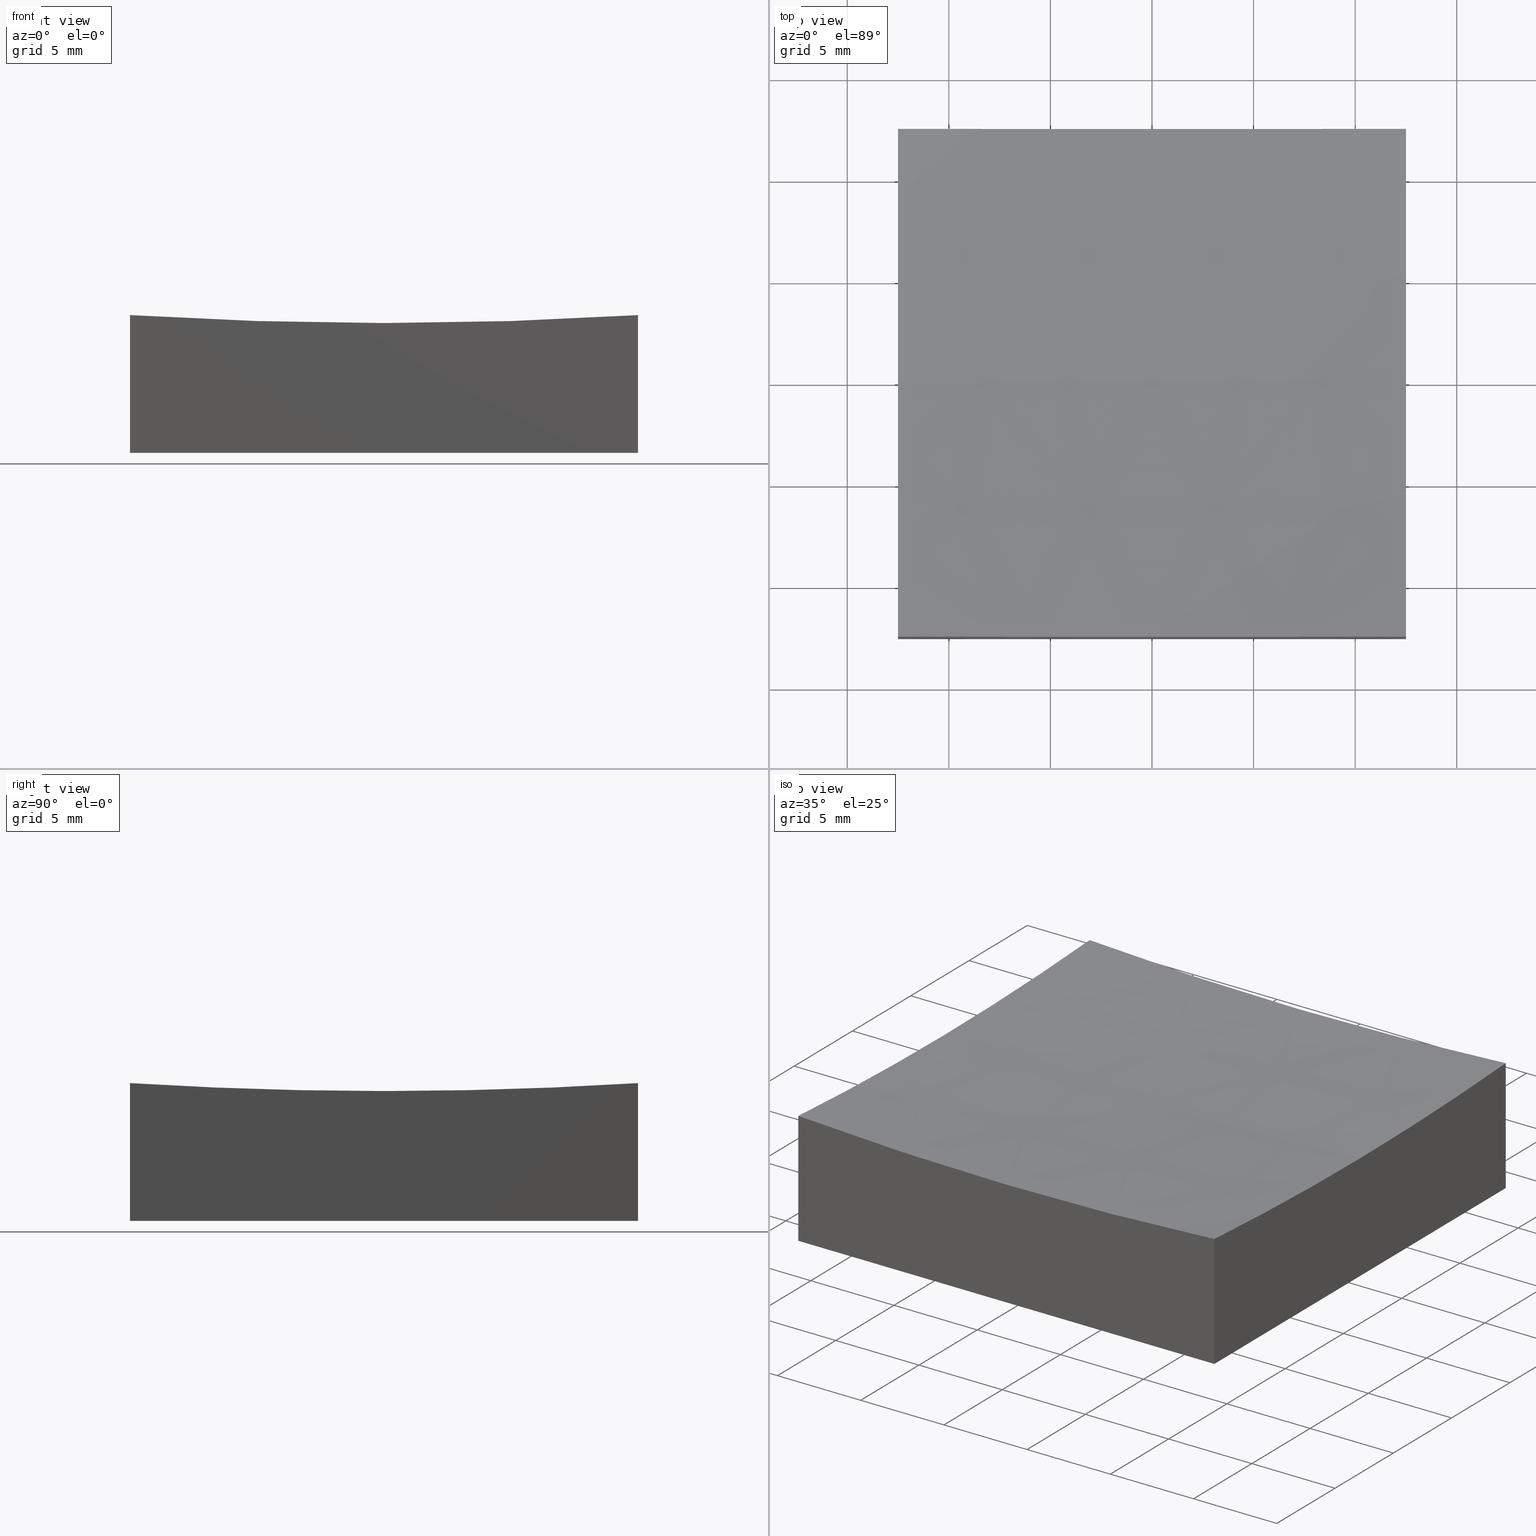
[diagram: canonical four-view strip — front | top / right | iso, engineering-drawing reading convention]
A machine part, canonical four-view strip (front | top / right | iso — engineering-drawing reading convention). The complete STEP part file that produces these views, byte-faithful:
ISO-10303-21;
HEADER;
FILE_DESCRIPTION (( 'STEP AP214' ),
    '1' );
FILE_NAME ('270038.STEP',
    '2020-06-05T06:24:30',
    ( '' ),
    ( '' ),
    'SwSTEP 2.0',
    'SolidWorks 2019',
    '' );
FILE_SCHEMA (( 'AUTOMOTIVE_DESIGN' ));
ENDSEC;

DATA;
#1 = ORIENTED_EDGE ( 'NONE', *, *, #158, .F. ) ;
#2 = DIRECTION ( 'NONE',  ( -0.0000000000000000000, -0.0000000000000000000, -1.000000000000000000 ) ) ;
#3 = ORIENTED_EDGE ( 'NONE', *, *, #20, .T. ) ;
#4 = MECHANICAL_DESIGN_GEOMETRIC_PRESENTATION_REPRESENTATION (  '', ( #225 ), #229 ) ;
#5 = DIRECTION ( 'NONE',  ( 0.0000000000000000000, 0.0000000000000000000, -1.000000000000000000 ) ) ;
#6 = ORIENTED_EDGE ( 'NONE', *, *, #20, .F. ) ;
#7 = LINE ( 'NONE', #161, #188 ) ;
#8 = DIRECTION ( 'NONE',  ( -0.0000000000000000000, -0.0000000000000000000, -1.000000000000000000 ) ) ;
#9 =( NAMED_UNIT ( * ) SI_UNIT ( $, .STERADIAN. ) SOLID_ANGLE_UNIT ( ) );
#10 = VECTOR ( 'NONE', #8, 1000.000000000000000 ) ;
#11 = FILL_AREA_STYLE ('',( #186 ) ) ;
#12 = EDGE_CURVE ( 'NONE', #119, #31, #106, .T. ) ;
#13 = AXIS2_PLACEMENT_3D ( 'NONE', #14, #68, #48 ) ;
#14 = CARTESIAN_POINT ( 'NONE',  ( -12.50000000000000000, 12.50000000000000000, 20.00000000000000000 ) ) ;
#15 = APPLICATION_CONTEXT ( 'automotive_design' ) ;
#16 = ORIENTED_EDGE ( 'NONE', *, *, #12, .T. ) ;
#17 = VECTOR ( 'NONE', #24, 1000.000000000000000 ) ;
#18 = ORIENTED_EDGE ( 'NONE', *, *, #118, .F. ) ;
#19 = ORIENTED_EDGE ( 'NONE', *, *, #187, .T. ) ;
#20 = EDGE_CURVE ( 'NONE', #95, #228, #72, .T. ) ;
#21 = FILL_AREA_STYLE ('',( #60 ) ) ;
#22 = ORIENTED_EDGE ( 'NONE', *, *, #89, .F. ) ;
#23 = CARTESIAN_POINT ( 'NONE',  ( 12.50000000000000355, -12.50000000000000000, 20.00000000000000000 ) ) ;
#24 = DIRECTION ( 'NONE',  ( -0.0000000000000000000, -0.0000000000000000000, -1.000000000000000000 ) ) ;
#25 = PRODUCT_CONTEXT ( 'NONE', #52, 'mechanical' ) ;
#26 = CARTESIAN_POINT ( 'NONE',  ( 12.50000000000000355, -12.50000000000000000, 6.782781868634652156 ) ) ;
#27 = CIRCLE ( 'NONE', #36, 199.6089927833914430 ) ;
#28 = CARTESIAN_POINT ( 'NONE',  ( -12.50000000000000000, 12.50000000000000000, 6.782781868634652156 ) ) ;
#29 = AXIS2_PLACEMENT_3D ( 'NONE', #233, #241, #99 ) ;
#30 = DIRECTION ( 'NONE',  ( 1.000000000000000000, 1.387778780781445676E-16, -0.0000000000000000000 ) ) ;
#31 = VERTEX_POINT ( 'NONE', #100 ) ;
#32 = CARTESIAN_POINT ( 'NONE',  ( -12.49999999999999822, 1.530808498934192310E-15, 6.391007216608610264 ) ) ;
#33 = ORIENTED_EDGE ( 'NONE', *, *, #98, .T. ) ;
#34 = DIRECTION ( 'NONE',  ( 0.0000000000000000000, 1.000000000000000000, 0.0000000000000000000 ) ) ;
#35 = DIRECTION ( 'NONE',  ( -1.390497253084598109E-16, 1.000000000000000000, 0.0000000000000000000 ) ) ;
#36 = AXIS2_PLACEMENT_3D ( 'NONE', #171, #73, #203 ) ;
#37 = ORIENTED_EDGE ( 'NONE', *, *, #12, .F. ) ;
#38 = EDGE_CURVE ( 'NONE', #172, #84, #178, .T. ) ;
#39 = CARTESIAN_POINT ( 'NONE',  ( -12.49999999999999822, -1.734723475976810644E-15, 206.0000000000000284 ) ) ;
#40 = PLANE ( 'NONE',  #58 ) ;
#41 = EDGE_CURVE ( 'NONE', #119, #78, #136, .T. ) ;
#42 = CARTESIAN_POINT ( 'NONE',  ( 12.50000000000000000, 12.50000000000000000, 6.782781868634652156 ) ) ;
#43 = ORIENTED_EDGE ( 'NONE', *, *, #41, .T. ) ;
#44 = SURFACE_STYLE_FILL_AREA ( #21 ) ;
#45 = ORIENTED_EDGE ( 'NONE', *, *, #206, .T. ) ;
#46 = LINE ( 'NONE', #23, #93 ) ;
#47 = FACE_OUTER_BOUND ( 'NONE', #207, .T. ) ;
#48 = DIRECTION ( 'NONE',  ( -1.387778780781445676E-16, 1.000000000000000000, 0.0000000000000000000 ) ) ;
#49 = CARTESIAN_POINT ( 'NONE',  ( 12.50000000000000355, -12.50000000000000000, 0.0000000000000000000 ) ) ;
#50 = PLANE ( 'NONE',  #204 ) ;
#51 = ADVANCED_FACE ( 'NONE', ( #47 ), #40, .T. ) ;
#52 = APPLICATION_CONTEXT ( 'automotive_design' ) ;
#53 = ORIENTED_EDGE ( 'NONE', *, *, #246, .T. ) ;
#54 = AXIS2_PLACEMENT_3D ( 'NONE', #243, #170, #35 ) ;
#55 = CARTESIAN_POINT ( 'NONE',  ( 0.0000000000000000000, 0.0000000000000000000, 0.0000000000000000000 ) ) ;
#56 = DIRECTION ( 'NONE',  ( 0.0000000000000000000, 0.0000000000000000000, 1.000000000000000000 ) ) ;
#57 = DIRECTION ( 'NONE',  ( 1.224646799147353207E-16, 1.000000000000000000, -1.241382061109245171E-32 ) ) ;
#58 = AXIS2_PLACEMENT_3D ( 'NONE', #129, #121, #196 ) ;
#59 = ORIENTED_EDGE ( 'NONE', *, *, #66, .T. ) ;
#60 = FILL_AREA_STYLE_COLOUR ( '', #87 ) ;
#61 = ORIENTED_EDGE ( 'NONE', *, *, #246, .F. ) ;
#62 = CARTESIAN_POINT ( 'NONE',  ( 2.522772406243548785E-14, 0.0000000000000000000, 206.0000000000000284 ) ) ;
#63 = ORIENTED_EDGE ( 'NONE', *, *, #132, .F. ) ;
#64 = DIRECTION ( 'NONE',  ( 0.0000000000000000000, -1.000000000000000000, -0.0000000000000000000 ) ) ;
#65 = CARTESIAN_POINT ( 'NONE',  ( 12.50000000000000178, 1.734723475976803742E-15, 206.0000000000000284 ) ) ;
#66 = EDGE_CURVE ( 'NONE', #84, #242, #238, .T. ) ;
#67 = PLANE ( 'NONE',  #126 ) ;
#68 = DIRECTION ( 'NONE',  ( 1.000000000000000000, 1.387778780781445676E-16, -0.0000000000000000000 ) ) ;
#69 = COLOUR_RGB ( '',1.000000000000000000, 1.000000000000000000, 1.000000000000000000 ) ;
#70 = FACE_OUTER_BOUND ( 'NONE', #202, .T. ) ;
#71 = AXIS2_PLACEMENT_3D ( 'NONE', #128, #197, #160 ) ;
#72 = CIRCLE ( 'NONE', #219, 199.6089927833914146 ) ;
#73 = DIRECTION ( 'NONE',  ( 0.0000000000000000000, 1.000000000000000000, 0.0000000000000000000 ) ) ;
#74 = UNCERTAINTY_MEASURE_WITH_UNIT (LENGTH_MEASURE( 1.000000000000000082E-05 ), #92, 'distance_accuracy_value', 'NONE');
#75 =( GEOMETRIC_REPRESENTATION_CONTEXT ( 3 ) GLOBAL_UNCERTAINTY_ASSIGNED_CONTEXT ( ( #190 ) ) GLOBAL_UNIT_ASSIGNED_CONTEXT ( ( #159, #231, #76 ) ) REPRESENTATION_CONTEXT ( 'NONE', 'WORKASPACE' ) );
#76 =( NAMED_UNIT ( * ) SI_UNIT ( $, .STERADIAN. ) SOLID_ANGLE_UNIT ( ) );
#77 = LINE ( 'NONE', #182, #162 ) ;
#78 = VERTEX_POINT ( 'NONE', #28 ) ;
#79 = PRODUCT_DEFINITION_FORMATION_WITH_SPECIFIED_SOURCE ( '�κ�', '', #117, .NOT_KNOWN. ) ;
#80 = SPHERICAL_SURFACE ( 'NONE', #71, 200.0000000000000000 ) ;
#81 = CIRCLE ( 'NONE', #223, 199.6089927833914146 ) ;
#82 = ORIENTED_EDGE ( 'NONE', *, *, #194, .F. ) ;
#83 = CARTESIAN_POINT ( 'NONE',  ( -12.49999999999999645, -12.50000000000000000, 6.782781868634652156 ) ) ;
#84 = VERTEX_POINT ( 'NONE', #104 ) ;
#85 = DIRECTION ( 'NONE',  ( -0.0000000000000000000, -0.0000000000000000000, -1.000000000000000000 ) ) ;
#86 = EDGE_LOOP ( 'NONE', ( #108, #33, #115, #167 ) ) ;
#87 = COLOUR_RGB ( '',1.000000000000000000, 1.000000000000000000, 1.000000000000000000 ) ;
#88 = SURFACE_STYLE_FILL_AREA ( #11 ) ;
#89 = EDGE_CURVE ( 'NONE', #193, #31, #77, .T. ) ;
#90 =( NAMED_UNIT ( * ) PLANE_ANGLE_UNIT ( ) SI_UNIT ( $, .RADIAN. ) );
#91 = ADVANCED_FACE ( 'NONE', ( #166 ), #80, .F. ) ;
#92 =( LENGTH_UNIT ( ) NAMED_UNIT ( * ) SI_UNIT ( .MILLI., .METRE. ) );
#93 = VECTOR ( 'NONE', #2, 1000.000000000000000 ) ;
#94 = VERTEX_POINT ( 'NONE', #164 ) ;
#95 = VERTEX_POINT ( 'NONE', #26 ) ;
#96 = DIRECTION ( 'NONE',  ( -1.390497253084598109E-16, 1.000000000000000000, 0.0000000000000000000 ) ) ;
#97 = ORIENTED_EDGE ( 'NONE', *, *, #158, .T. ) ;
#98 = EDGE_CURVE ( 'NONE', #31, #242, #214, .T. ) ;
#99 = DIRECTION ( 'NONE',  ( -1.000000000000000000, 0.0000000000000000000, -0.0000000000000000000 ) ) ;
#100 = CARTESIAN_POINT ( 'NONE',  ( 12.50000000000000000, 12.50000000000000000, 0.0000000000000000000 ) ) ;
#101 = APPLICATION_PROTOCOL_DEFINITION ( 'draft international standard', 'automotive_design', 1998, #15 ) ;
#102 = DIRECTION ( 'NONE',  ( 1.387778780781445676E-16, -1.000000000000000000, 0.0000000000000000000 ) ) ;
#103 = VECTOR ( 'NONE', #102, 1000.000000000000000 ) ;
#104 = CARTESIAN_POINT ( 'NONE',  ( -12.49999999999999645, -12.50000000000000000, 0.0000000000000000000 ) ) ;
#105 = DIRECTION ( 'NONE',  ( -1.000000000000000000, 1.224646799147353207E-16, 0.0000000000000000000 ) ) ;
#106 = LINE ( 'NONE', #183, #10 ) ;
#107 = CARTESIAN_POINT ( 'NONE',  ( 2.522772406243548785E-14, 0.0000000000000000000, 206.0000000000000284 ) ) ;
#108 = ORIENTED_EDGE ( 'NONE', *, *, #89, .T. ) ;
#109 = FACE_OUTER_BOUND ( 'NONE', #140, .T. ) ;
#110 = CIRCLE ( 'NONE', #249, 199.6089927833914146 ) ;
#111 = ADVANCED_FACE ( 'NONE', ( #138 ), #120, .T. ) ;
#112 = CARTESIAN_POINT ( 'NONE',  ( -12.50000000000000000, 12.50000000000000000, 20.00000000000000000 ) ) ;
#113 = PRESENTATION_LAYER_ASSIGNMENT (  '', '', ( #225 ) ) ;
#114 = ORIENTED_EDGE ( 'NONE', *, *, #168, .T. ) ;
#115 = ORIENTED_EDGE ( 'NONE', *, *, #66, .F. ) ;
#116 = PRODUCT_DEFINITION_CONTEXT ( 'detailed design', #15, 'design' ) ;
#117 = PRODUCT ( '270038', '270038', '', ( #25 ) ) ;
#118 = EDGE_CURVE ( 'NONE', #78, #193, #7, .T. ) ;
#119 = VERTEX_POINT ( 'NONE', #42 ) ;
#120 = PLANE ( 'NONE',  #29 ) ;
#121 = DIRECTION ( 'NONE',  ( 1.000000000000000000, 1.387778780781445676E-16, -0.0000000000000000000 ) ) ;
#122 = PRESENTATION_STYLE_ASSIGNMENT (( #137 ) ) ;
#123 = CARTESIAN_POINT ( 'NONE',  ( 2.522772406243548785E-14, 0.0000000000000000000, 206.0000000000000284 ) ) ;
#124 = CARTESIAN_POINT ( 'NONE',  ( 2.522772406243548785E-14, 12.50000000000000000, 206.0000000000000284 ) ) ;
#125 = SURFACE_SIDE_STYLE ('',( #44 ) ) ;
#126 = AXIS2_PLACEMENT_3D ( 'NONE', #245, #34, #226 ) ;
#127 = EDGE_LOOP ( 'NONE', ( #63, #114, #45, #43, #82 ) ) ;
#128 = CARTESIAN_POINT ( 'NONE',  ( 2.522772406243548785E-14, 0.0000000000000000000, 206.0000000000000284 ) ) ;
#129 = CARTESIAN_POINT ( 'NONE',  ( 12.50000000000000000, 12.50000000000000000, 20.00000000000000000 ) ) ;
#130 =( NAMED_UNIT ( * ) SI_UNIT ( $, .STERADIAN. ) SOLID_ANGLE_UNIT ( ) );
#131 = DIRECTION ( 'NONE',  ( 0.0000000000000000000, 1.000000000000000000, 0.0000000000000000000 ) ) ;
#132 = EDGE_CURVE ( 'NONE', #94, #146, #180, .T. ) ;
#133 = CARTESIAN_POINT ( 'NONE',  ( 12.50000000000000000, 0.0000000000000000000, 6.391007216608610264 ) ) ;
#134 =( NAMED_UNIT ( * ) PLANE_ANGLE_UNIT ( ) SI_UNIT ( $, .RADIAN. ) );
#135 = EDGE_LOOP ( 'NONE', ( #1, #53, #154, #59 ) ) ;
#136 = CIRCLE ( 'NONE', #251, 199.6089927833914430 ) ;
#137 = SURFACE_STYLE_USAGE ( .BOTH. , #218 ) ;
#138 = FACE_OUTER_BOUND ( 'NONE', #86, .T. ) ;
#139 = VECTOR ( 'NONE', #211, 1000.000000000000000 ) ;
#140 = EDGE_LOOP ( 'NONE', ( #189, #16, #22, #18 ) ) ;
#141 = DIRECTION ( 'NONE',  ( 1.000000000000000000, 0.0000000000000000000, -1.387778780781445676E-16 ) ) ;
#142 = ORIENTED_EDGE ( 'NONE', *, *, #149, .F. ) ;
#143 = CARTESIAN_POINT ( 'NONE',  ( -12.49999999999999822, -1.734723475976810644E-15, 206.0000000000000284 ) ) ;
#144 = CARTESIAN_POINT ( 'NONE',  ( -12.49999999999999645, -12.50000000000000000, 20.00000000000000000 ) ) ;
#145 = LINE ( 'NONE', #216, #139 ) ;
#146 = VERTEX_POINT ( 'NONE', #32 ) ;
#147 = PRESENTATION_STYLE_ASSIGNMENT (( #252 ) ) ;
#148 = ADVANCED_FACE ( 'NONE', ( #239 ), #174, .F. ) ;
#149 = EDGE_CURVE ( 'NONE', #172, #146, #110, .T. ) ;
#150 = AXIS2_PLACEMENT_3D ( 'NONE', #62, #237, #141 ) ;
#151 = PRODUCT_DEFINITION ( 'δ֪', '', #79, #116 ) ;
#152 =( LENGTH_UNIT ( ) NAMED_UNIT ( * ) SI_UNIT ( .MILLI., .METRE. ) );
#153 = ORIENTED_EDGE ( 'NONE', *, *, #118, .T. ) ;
#154 = ORIENTED_EDGE ( 'NONE', *, *, #38, .T. ) ;
#155 = STYLED_ITEM ( 'NONE', ( #122 ), #247 ) ;
#156 = CIRCLE ( 'NONE', #54, 199.6089927833914146 ) ;
#157 = AXIS2_PLACEMENT_3D ( 'NONE', #123, #57, #105 ) ;
#158 = EDGE_CURVE ( 'NONE', #95, #242, #46, .T. ) ;
#159 =( LENGTH_UNIT ( ) NAMED_UNIT ( * ) SI_UNIT ( .MILLI., .METRE. ) );
#160 = DIRECTION ( 'NONE',  ( 1.000000000000000000, 0.0000000000000000000, -1.387778780781445676E-16 ) ) ;
#161 = CARTESIAN_POINT ( 'NONE',  ( -12.50000000000000000, 12.50000000000000000, 20.00000000000000000 ) ) ;
#162 = VECTOR ( 'NONE', #195, 1000.000000000000000 ) ;
#163 = DIRECTION ( 'NONE',  ( 0.0000000000000000000, 1.000000000000000000, 0.0000000000000000000 ) ) ;
#164 = CARTESIAN_POINT ( 'NONE',  ( 1.720088448517093624E-14, 0.0000000000000000000, 6.000000000000005329 ) ) ;
#165 = ORIENTED_EDGE ( 'NONE', *, *, #206, .F. ) ;
#166 = FACE_OUTER_BOUND ( 'NONE', #217, .T. ) ;
#167 = ORIENTED_EDGE ( 'NONE', *, *, #187, .F. ) ;
#168 = EDGE_CURVE ( 'NONE', #94, #228, #230, .T. ) ;
#169 = FACE_OUTER_BOUND ( 'NONE', #135, .T. ) ;
#170 = DIRECTION ( 'NONE',  ( 1.000000000000000000, 1.387778780781445676E-16, -0.0000000000000000000 ) ) ;
#171 = CARTESIAN_POINT ( 'NONE',  ( 2.522772406243548785E-14, -12.50000000000000000, 206.0000000000000284 ) ) ;
#172 = VERTEX_POINT ( 'NONE', #83 ) ;
#173 = DIRECTION ( 'NONE',  ( 1.000000000000000000, 0.0000000000000000000, 0.0000000000000000000 ) ) ;
#174 = SPHERICAL_SURFACE ( 'NONE', #150, 200.0000000000000000 ) ;
#175 = DIRECTION ( 'NONE',  ( 1.000000000000000000, 1.387778780781445676E-16, -0.0000000000000000000 ) ) ;
#176 = PRODUCT_RELATED_PRODUCT_CATEGORY ( 'part', '', ( #117 ) ) ;
#177 =( GEOMETRIC_REPRESENTATION_CONTEXT ( 3 ) GLOBAL_UNCERTAINTY_ASSIGNED_CONTEXT ( ( #250 ) ) GLOBAL_UNIT_ASSIGNED_CONTEXT ( ( #152, #134, #9 ) ) REPRESENTATION_CONTEXT ( 'NONE', 'WORKASPACE' ) );
#178 = LINE ( 'NONE', #144, #17 ) ;
#179 = DIRECTION ( 'NONE',  ( -1.390497253084598109E-16, 1.000000000000000000, 0.0000000000000000000 ) ) ;
#180 = CIRCLE ( 'NONE', #157, 200.0000000000000000 ) ;
#181 = ORIENTED_EDGE ( 'NONE', *, *, #168, .F. ) ;
#182 = CARTESIAN_POINT ( 'NONE',  ( -12.50000000000000000, 12.50000000000000000, 0.0000000000000000000 ) ) ;
#183 = CARTESIAN_POINT ( 'NONE',  ( 12.50000000000000000, 12.50000000000000000, 20.00000000000000000 ) ) ;
#184 = CARTESIAN_POINT ( 'NONE',  ( -12.50000000000000000, 12.50000000000000000, 0.0000000000000000000 ) ) ;
#185 = AXIS2_PLACEMENT_3D ( 'NONE', #55, #56, #173 ) ;
#186 = FILL_AREA_STYLE_COLOUR ( '', #69 ) ;
#187 = EDGE_CURVE ( 'NONE', #193, #84, #145, .T. ) ;
#188 = VECTOR ( 'NONE', #85, 1000.000000000000000 ) ;
#189 = ORIENTED_EDGE ( 'NONE', *, *, #41, .F. ) ;
#190 = UNCERTAINTY_MEASURE_WITH_UNIT (LENGTH_MEASURE( 1.000000000000000082E-05 ), #159, 'distance_accuracy_value', 'NONE');
#191 = ORIENTED_EDGE ( 'NONE', *, *, #98, .F. ) ;
#192 = DIRECTION ( 'NONE',  ( 1.000000000000000000, 1.387778780781445676E-16, -0.0000000000000000000 ) ) ;
#193 = VERTEX_POINT ( 'NONE', #184 ) ;
#194 = EDGE_CURVE ( 'NONE', #146, #78, #81, .T. ) ;
#195 = DIRECTION ( 'NONE',  ( 1.000000000000000000, 0.0000000000000000000, 0.0000000000000000000 ) ) ;
#196 = DIRECTION ( 'NONE',  ( -1.387778780781445676E-16, 1.000000000000000000, 0.0000000000000000000 ) ) ;
#197 = DIRECTION ( 'NONE',  ( 0.0000000000000000000, 1.000000000000000000, 0.0000000000000000000 ) ) ;
#198 = DIRECTION ( 'NONE',  ( 1.000000000000000000, 0.0000000000000000000, 0.0000000000000000000 ) ) ;
#199 = CLOSED_SHELL ( 'NONE', ( #91, #234, #222, #212, #51, #111, #148 ) ) ;
#200 = ORIENTED_EDGE ( 'NONE', *, *, #194, .T. ) ;
#201 = CARTESIAN_POINT ( 'NONE',  ( 12.50000000000000000, 12.50000000000000000, 0.0000000000000000000 ) ) ;
#202 = EDGE_LOOP ( 'NONE', ( #227, #235, #200, #153, #19 ) ) ;
#203 = DIRECTION ( 'NONE',  ( 0.0000000000000000000, 0.0000000000000000000, 1.000000000000000000 ) ) ;
#204 = AXIS2_PLACEMENT_3D ( 'NONE', #112, #131, #224 ) ;
#205 = MANIFOLD_SOLID_BREP ( '�г�-��ת2', #199 ) ;
#206 = EDGE_CURVE ( 'NONE', #228, #119, #156, .T. ) ;
#207 = EDGE_LOOP ( 'NONE', ( #6, #97, #191, #37, #165 ) ) ;
#208 = PRODUCT_DEFINITION_SHAPE ( 'NONE', 'NONE',  #151 ) ;
#209 = APPLICATION_PROTOCOL_DEFINITION ( 'draft international standard', 'automotive_design', 1998, #52 ) ;
#210 = VECTOR ( 'NONE', #198, 1000.000000000000000 ) ;
#211 = DIRECTION ( 'NONE',  ( 1.387778780781445676E-16, -1.000000000000000000, 0.0000000000000000000 ) ) ;
#212 = ADVANCED_FACE ( 'NONE', ( #169 ), #67, .F. ) ;
#213 = DIRECTION ( 'NONE',  ( -1.390497253084598109E-16, 1.000000000000000000, 0.0000000000000000000 ) ) ;
#214 = LINE ( 'NONE', #201, #103 ) ;
#215 = CARTESIAN_POINT ( 'NONE',  ( -12.49999999999999645, -12.50000000000000000, 0.0000000000000000000 ) ) ;
#216 = CARTESIAN_POINT ( 'NONE',  ( -12.50000000000000000, 12.50000000000000000, 0.0000000000000000000 ) ) ;
#217 = EDGE_LOOP ( 'NONE', ( #181, #240, #142, #61, #3 ) ) ;
#218 = SURFACE_SIDE_STYLE ('',( #88 ) ) ;
#219 = AXIS2_PLACEMENT_3D ( 'NONE', #65, #175, #213 ) ;
#220 = DIRECTION ( 'NONE',  ( 0.0000000000000000000, 0.0000000000000000000, 1.000000000000000000 ) ) ;
#221 = PLANE ( 'NONE',  #13 ) ;
#222 = ADVANCED_FACE ( 'NONE', ( #70 ), #221, .F. ) ;
#223 = AXIS2_PLACEMENT_3D ( 'NONE', #39, #192, #96 ) ;
#224 = DIRECTION ( 'NONE',  ( 0.0000000000000000000, -0.0000000000000000000, 1.000000000000000000 ) ) ;
#225 = STYLED_ITEM ( 'NONE', ( #147 ), #205 ) ;
#226 = DIRECTION ( 'NONE',  ( 0.0000000000000000000, -0.0000000000000000000, 1.000000000000000000 ) ) ;
#227 = ORIENTED_EDGE ( 'NONE', *, *, #38, .F. ) ;
#228 = VERTEX_POINT ( 'NONE', #133 ) ;
#229 =( GEOMETRIC_REPRESENTATION_CONTEXT ( 3 ) GLOBAL_UNCERTAINTY_ASSIGNED_CONTEXT ( ( #74 ) ) GLOBAL_UNIT_ASSIGNED_CONTEXT ( ( #92, #90, #130 ) ) REPRESENTATION_CONTEXT ( 'NONE', 'WORKASPACE' ) );
#230 = CIRCLE ( 'NONE', #236, 200.0000000000000000 ) ;
#231 =( NAMED_UNIT ( * ) PLANE_ANGLE_UNIT ( ) SI_UNIT ( $, .RADIAN. ) );
#232 = SHAPE_DEFINITION_REPRESENTATION ( #208, #247 ) ;
#233 = CARTESIAN_POINT ( 'NONE',  ( 0.0000000000000000000, 0.0000000000000000000, 0.0000000000000000000 ) ) ;
#234 = ADVANCED_FACE ( 'NONE', ( #109 ), #50, .T. ) ;
#235 = ORIENTED_EDGE ( 'NONE', *, *, #149, .T. ) ;
#236 = AXIS2_PLACEMENT_3D ( 'NONE', #107, #64, #5 ) ;
#237 = DIRECTION ( 'NONE',  ( 0.0000000000000000000, 1.000000000000000000, 0.0000000000000000000 ) ) ;
#238 = LINE ( 'NONE', #215, #210 ) ;
#239 = FACE_OUTER_BOUND ( 'NONE', #127, .T. ) ;
#240 = ORIENTED_EDGE ( 'NONE', *, *, #132, .T. ) ;
#241 = DIRECTION ( 'NONE',  ( 0.0000000000000000000, 0.0000000000000000000, -1.000000000000000000 ) ) ;
#242 = VERTEX_POINT ( 'NONE', #49 ) ;
#243 = CARTESIAN_POINT ( 'NONE',  ( 12.50000000000000178, 1.734723475976803742E-15, 206.0000000000000284 ) ) ;
#244 = PRESENTATION_LAYER_ASSIGNMENT (  '', '', ( #155 ) ) ;
#245 = CARTESIAN_POINT ( 'NONE',  ( -12.49999999999999645, -12.50000000000000000, 20.00000000000000000 ) ) ;
#246 = EDGE_CURVE ( 'NONE', #95, #172, #27, .T. ) ;
#247 = ADVANCED_BREP_SHAPE_REPRESENTATION ( '270038', ( #205, #185 ), #177 ) ;
#248 = MECHANICAL_DESIGN_GEOMETRIC_PRESENTATION_REPRESENTATION (  '', ( #155 ), #75 ) ;
#249 = AXIS2_PLACEMENT_3D ( 'NONE', #143, #30, #179 ) ;
#250 = UNCERTAINTY_MEASURE_WITH_UNIT (LENGTH_MEASURE( 1.000000000000000082E-05 ), #152, 'distance_accuracy_value', 'NONE');
#251 = AXIS2_PLACEMENT_3D ( 'NONE', #124, #163, #220 ) ;
#252 = SURFACE_STYLE_USAGE ( .BOTH. , #125 ) ;
ENDSEC;
END-ISO-10303-21;
